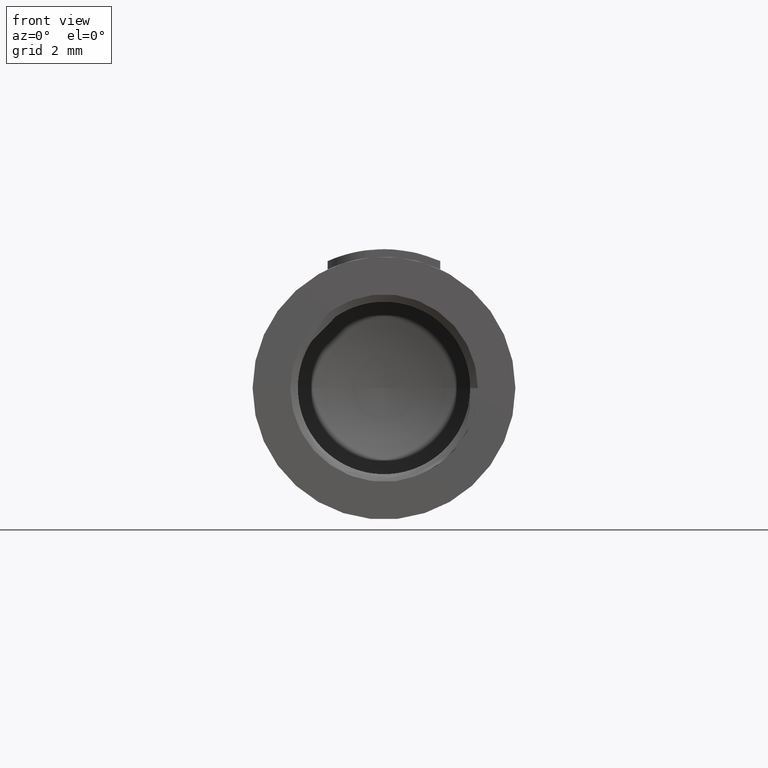
[diagram: clean part render]
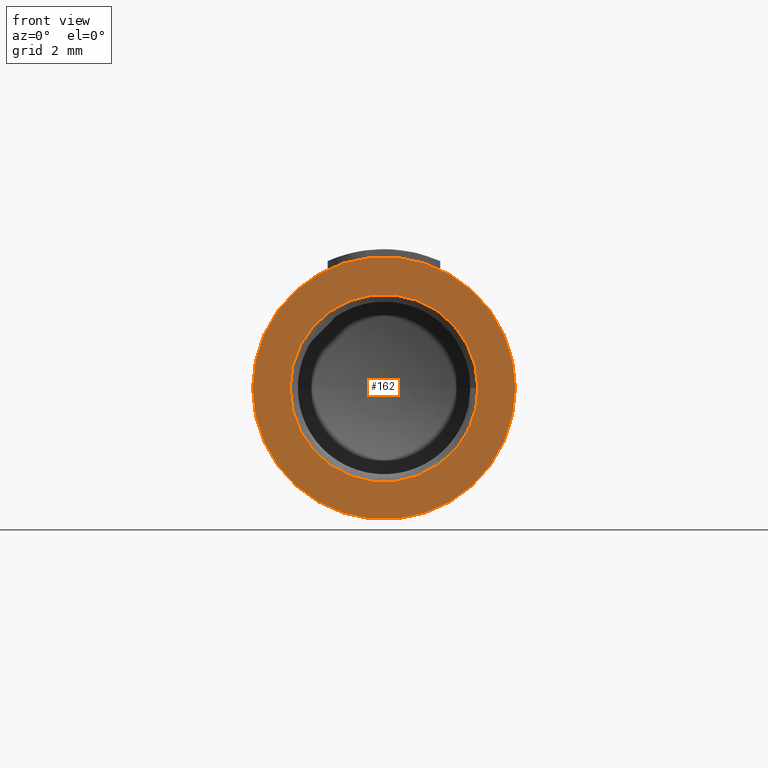
[diagram: same view with one face highlighted and labeled with its STEP entity id]
A machine part, front view. The second image highlights one B-rep face of the part: STEP entity #162.
In plain terms, the highlighted planar face has unit normal (0, 1, 0).
Its self-contained STEP definition (entity closure, byte-faithful):
#162=ADVANCED_FACE('',(#330,#331),#332,.F.);
#330=FACE_BOUND('',#2065,.T.);
#331=FACE_OUTER_BOUND('',#2066,.T.);
#332=PLANE('',#2067);
#2065=EDGE_LOOP('',(#2713,#2714));
#2066=EDGE_LOOP('',(#2715,#2716));
#2067=AXIS2_PLACEMENT_3D('',#2717,#2718,#2719);
#2713=ORIENTED_EDGE('',*,*,#2961,.F.);
#2714=ORIENTED_EDGE('',*,*,#2767,.F.);
#2715=ORIENTED_EDGE('',*,*,#2898,.T.);
#2716=ORIENTED_EDGE('',*,*,#2773,.T.);
#2717=CARTESIAN_POINT('',(-2.14313189850787E-16,2.60208521396521E-15,-3.5));
#2718=DIRECTION('',(0.0,1.0,0.0));
#2719=DIRECTION('',(-1.0,0.0,6.12323399573677E-17));
#2767=EDGE_CURVE('',#2991,#2988,#2993,.T.);
#2773=EDGE_CURVE('',#3004,#3002,#3005,.T.);
#2898=EDGE_CURVE('',#3002,#3004,#3211,.T.);
#2961=EDGE_CURVE('',#2988,#2991,#3314,.T.);
#2988=VERTEX_POINT('',#4143);
#2991=VERTEX_POINT('',#4147);
#2993=CIRCLE('',#4150,2.5);
#3002=VERTEX_POINT('',#4159);
#3004=VERTEX_POINT('',#4162);
#3005=CIRCLE('',#4163,3.5);
#3211=CIRCLE('',#4429,3.5);
#3314=CIRCLE('',#4577,2.5);
#4143=CARTESIAN_POINT('',(2.5,0.0,-1.53080849893419E-16));
#4147=CARTESIAN_POINT('',(-2.5,0.0,-1.53080849893419E-16));
#4150=AXIS2_PLACEMENT_3D('',#4596,#4597,#4598);
#4159=CARTESIAN_POINT('',(3.5,5.20417042793042E-15,-2.14313189850787E-16));
#4162=CARTESIAN_POINT('',(-3.5,5.32907051820075E-15,-2.14313189850787E-16));
#4163=AXIS2_PLACEMENT_3D('',#4612,#4613,#4614);
#4429=AXIS2_PLACEMENT_3D('',#4888,#4889,#4890);
#4577=AXIS2_PLACEMENT_3D('',#5002,#5003,#5004);
#4596=CARTESIAN_POINT('',(0.0,0.0,0.0));
#4597=DIRECTION('',(0.0,-1.0,0.0));
#4598=DIRECTION('',(1.0,0.0,-6.12323399573677E-17));
#4612=CARTESIAN_POINT('',(0.0,5.20417042793042E-15,0.0));
#4613=DIRECTION('',(0.0,-1.0,0.0));
#4614=DIRECTION('',(1.0,0.0,-6.12323399573677E-17));
#4888=CARTESIAN_POINT('',(0.0,5.20417042793042E-15,0.0));
#4889=DIRECTION('',(0.0,-1.0,0.0));
#4890=DIRECTION('',(1.0,0.0,-6.12323399573677E-17));
#5002=CARTESIAN_POINT('',(0.0,0.0,0.0));
#5003=DIRECTION('',(0.0,-1.0,0.0));
#5004=DIRECTION('',(1.0,0.0,-6.12323399573677E-17));